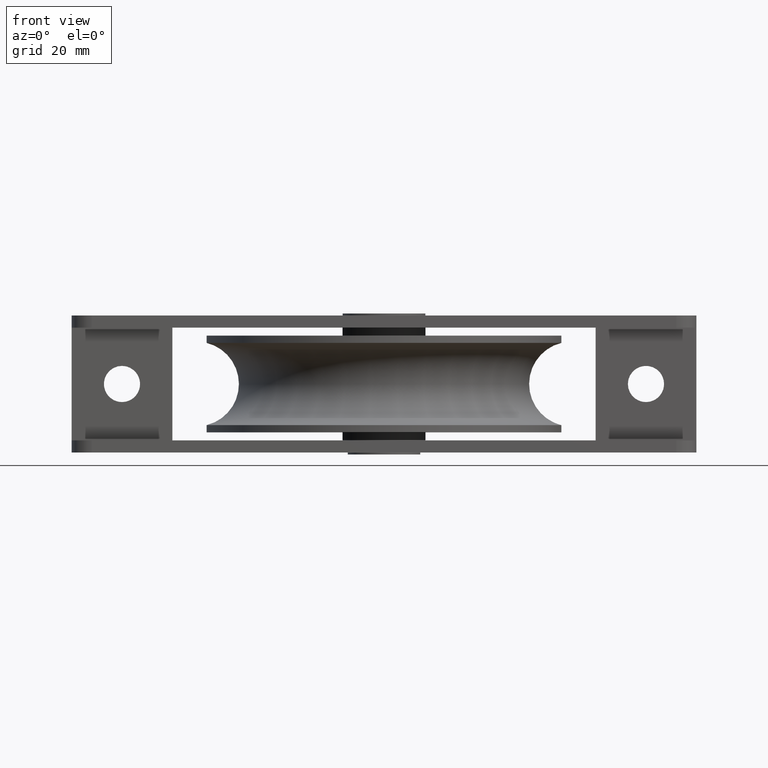
[diagram: clean part render]
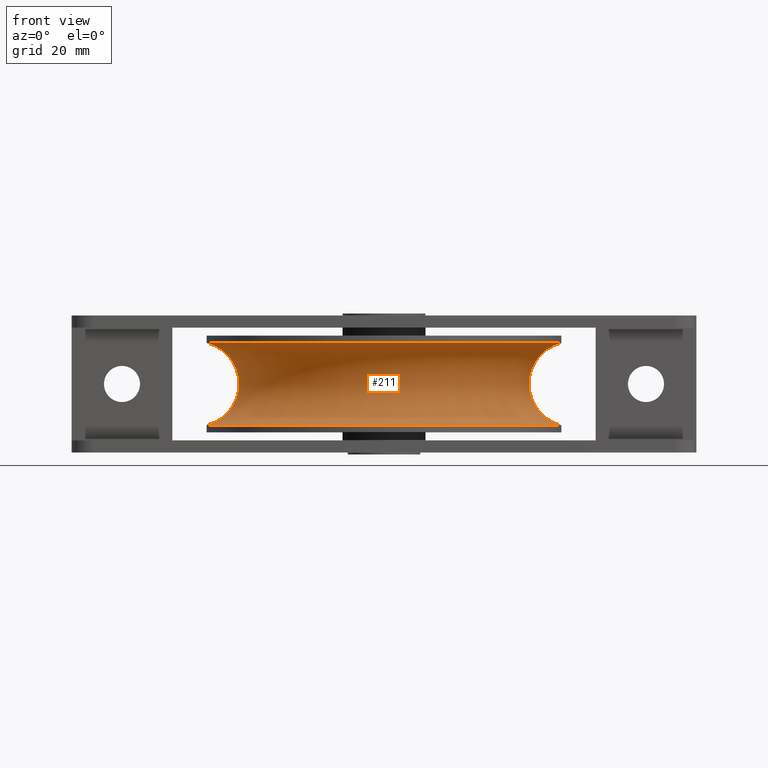
[diagram: same view with one face highlighted and labeled with its STEP entity id]
A machine part, front view. The second image highlights one B-rep face of the part: STEP entity #211.
In plain terms, the highlighted toroidal blend (fillet) surface has major radius 46.5 mm and minor (blend) radius 10.5 mm.
Its self-contained STEP definition (entity closure, byte-faithful):
#210 = DIRECTION ( 'NONE',  ( -0.0000000000000000000, -0.0000000000000000000, 1.000000000000000000 ) ) ;
#211 = ADVANCED_FACE ( 'NONE', ( #11905, #5607 ), #3903, .F. ) ;
#310 = VERTEX_POINT ( 'NONE', #7609 ) ;
#936 = EDGE_LOOP ( 'NONE', ( #3637 ) ) ;
#1231 = EDGE_CURVE ( 'NONE', #310, #310, #9770, .T. ) ;
#3217 = DIRECTION ( 'NONE',  ( 1.000000000000000000, 0.0000000000000000000, 0.0000000000000000000 ) ) ;
#3637 = ORIENTED_EDGE ( 'NONE', *, *, #1231, .T. ) ;
#3806 = AXIS2_PLACEMENT_3D ( 'NONE', #11159, #11018, #3217 ) ;
#3903 = TOROIDAL_SURFACE ( 'NONE', #3806, 46.50000000000000000, 10.50000000000000200 ) ;
#4859 = AXIS2_PLACEMENT_3D ( 'NONE', #11477, #210, #13685 ) ;
#5040 = DIRECTION ( 'NONE',  ( 1.000000000000000000, 0.0000000000000000000, 0.0000000000000000000 ) ) ;
#5607 = FACE_OUTER_BOUND ( 'NONE', #7169, .T. ) ;
#5796 = EDGE_CURVE ( 'NONE', #13367, #13367, #8757, .T. ) ;
#6580 = CARTESIAN_POINT ( 'NONE',  ( 44.00000000000004300, 0.0000000000000000000, 10.19803902718558300 ) ) ;
#6788 = AXIS2_PLACEMENT_3D ( 'NONE', #10567, #10612, #5040 ) ;
#7169 = EDGE_LOOP ( 'NONE', ( #9721 ) ) ;
#7609 = CARTESIAN_POINT ( 'NONE',  ( 44.00000000000004300, 0.0000000000000000000, -10.19803902718558300 ) ) ;
#8757 = CIRCLE ( 'NONE', #4859, 44.00000000000004300 ) ;
#9721 = ORIENTED_EDGE ( 'NONE', *, *, #5796, .F. ) ;
#9770 = CIRCLE ( 'NONE', #6788, 44.00000000000004300 ) ;
#10567 = CARTESIAN_POINT ( 'NONE',  ( 0.0000000000000000000, 0.0000000000000000000, -10.19803902718558300 ) ) ;
#10612 = DIRECTION ( 'NONE',  ( -0.0000000000000000000, -0.0000000000000000000, 1.000000000000000000 ) ) ;
#11018 = DIRECTION ( 'NONE',  ( -0.0000000000000000000, -0.0000000000000000000, 1.000000000000000000 ) ) ;
#11159 = CARTESIAN_POINT ( 'NONE',  ( 0.0000000000000000000, 0.0000000000000000000, 0.0000000000000000000 ) ) ;
#11477 = CARTESIAN_POINT ( 'NONE',  ( 0.0000000000000000000, 0.0000000000000000000, 10.19803902718558300 ) ) ;
#11905 = FACE_OUTER_BOUND ( 'NONE', #936, .T. ) ;
#13367 = VERTEX_POINT ( 'NONE', #6580 ) ;
#13685 = DIRECTION ( 'NONE',  ( 1.000000000000000000, 0.0000000000000000000, 0.0000000000000000000 ) ) ;